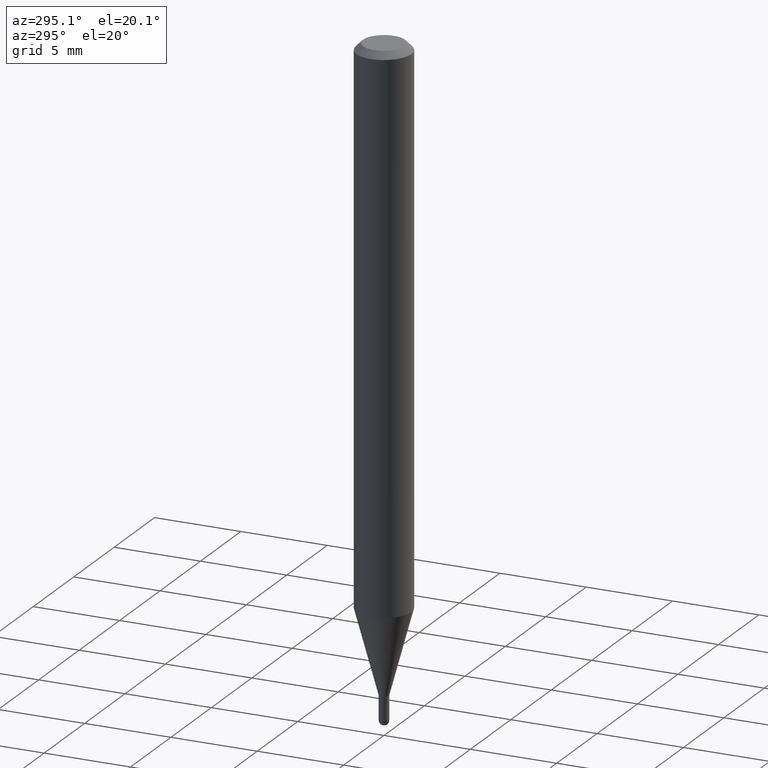
[diagram: clean part render]
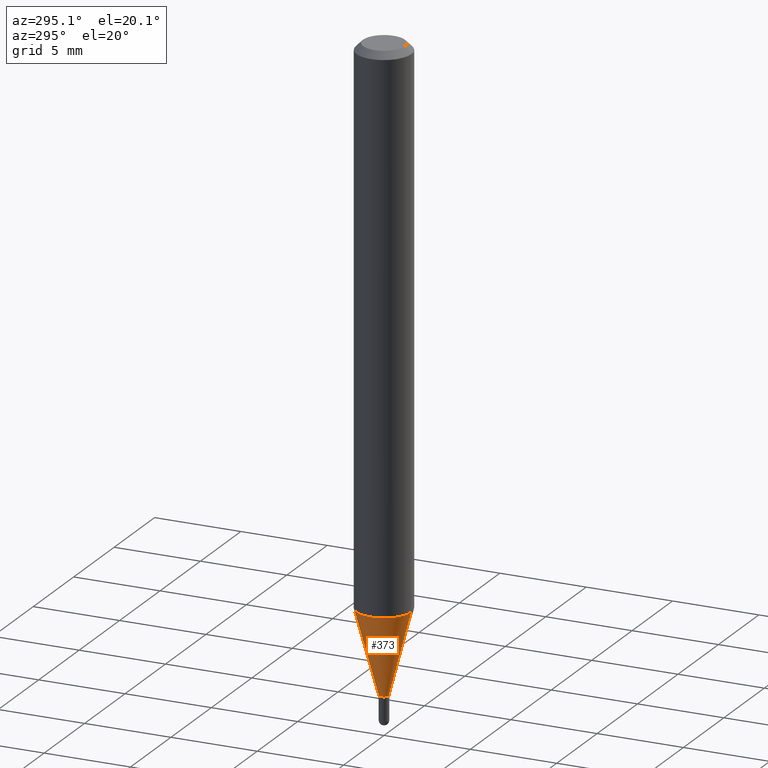
[diagram: same view with one face highlighted and labeled with its STEP entity id]
A machine part, auxiliary view. The second image highlights one B-rep face of the part: STEP entity #373.
In plain terms, the highlighted conical surface has half-angle 15 deg.
Its self-contained STEP definition (entity closure, byte-faithful):
#38 = CARTESIAN_POINT ( 'NONE',  ( 3.506791766465352744E-29, -5.006799278795903380E-15, -1.434000000000000163 ) ) ;
#49 = DIRECTION ( 'NONE',  ( -6.982962677686265922E-15, -1.000000000000000000, 4.370956789862821150E-15 ) ) ;
#70 = CARTESIAN_POINT ( 'NONE',  ( -7.681258945451523121E-17, -0.01100000000000520353, -1.434000000000000163 ) ) ;
#89 = FACE_OUTER_BOUND ( 'NONE', #484, .T. ) ;
#91 = VERTEX_POINT ( 'NONE', #70 ) ;
#125 = DIRECTION ( 'NONE',  ( -6.982962677686265922E-15, -1.000000000000000000, 0.000000000000000000 ) ) ;
#129 = DIRECTION ( 'NONE',  ( -2.445461482890762245E-29, 3.491491826217505762E-15, 1.000000000000000000 ) ) ;
#164 = CARTESIAN_POINT ( 'NONE',  ( 7.815970093364746375E-17, 0.01099999999999519071, -1.434000000000000163 ) ) ;
#165 = VERTEX_POINT ( 'NONE', #414 ) ;
#192 = VECTOR ( 'NONE', #234, 39.37007874015748143 ) ;
#193 = LINE ( 'NONE', #164, #283 ) ;
#194 = CIRCLE ( 'NONE', #411, 0.06250000000000000000 ) ;
#196 = CARTESIAN_POINT ( 'NONE',  ( 4.440892098500927901E-16, 0.06249999999999566319, -1.241799383410210122 ) ) ;
#207 = ORIENTED_EDGE ( 'NONE', *, *, #321, .T. ) ;
#210 = CARTESIAN_POINT ( 'NONE',  ( 3.506791766465352744E-29, -5.006799278795903380E-15, -1.434000000000000163 ) ) ;
#218 = AXIS2_PLACEMENT_3D ( 'NONE', #38, #129, #125 ) ;
#223 = AXIS2_PLACEMENT_3D ( 'NONE', #210, #238, #493 ) ;
#225 = ORIENTED_EDGE ( 'NONE', *, *, #416, .F. ) ;
#228 = LINE ( 'NONE', #317, #192 ) ;
#234 = DIRECTION ( 'NONE',  ( -1.807323732225379838E-15, -0.2588190451025252914, 0.9659258262890670910 ) ) ;
#238 = DIRECTION ( 'NONE',  ( -2.445461482890762245E-29, 3.491491826217505762E-15, 1.000000000000000000 ) ) ;
#254 = EDGE_CURVE ( 'NONE', #348, #91, #497, .T. ) ;
#283 = VECTOR ( 'NONE', #349, 39.37007874015748854 ) ;
#286 = ORIENTED_EDGE ( 'NONE', *, *, #254, .T. ) ;
#315 = EDGE_CURVE ( 'NONE', #348, #355, #193, .T. ) ;
#317 = CARTESIAN_POINT ( 'NONE',  ( -7.681258945451523121E-17, -0.01100000000000520353, -1.434000000000000163 ) ) ;
#321 = EDGE_CURVE ( 'NONE', #91, #165, #228, .T. ) ;
#343 = ORIENTED_EDGE ( 'NONE', *, *, #315, .F. ) ;
#348 = VERTEX_POINT ( 'NONE', #439 ) ;
#349 = DIRECTION ( 'NONE',  ( 1.839019923739650408E-15, 0.2588190451025320082, 0.9659258262890650926 ) ) ;
#355 = VERTEX_POINT ( 'NONE', #196 ) ;
#373 = ADVANCED_FACE ( 'NONE', ( #89 ), #392, .T. ) ;
#392 = CONICAL_SURFACE ( 'NONE', #223, 0.01100000000000019712, 0.2617993877991576235 ) ;
#399 = CARTESIAN_POINT ( 'NONE',  ( 3.036772561607166084E-29, -4.335732396978686706E-15, -1.241799383410209900 ) ) ;
#411 = AXIS2_PLACEMENT_3D ( 'NONE', #399, #491, #49 ) ;
#414 = CARTESIAN_POINT ( 'NONE',  ( -4.364351673553612983E-16, -0.06250000000000434375, -1.241799383410209678 ) ) ;
#416 = EDGE_CURVE ( 'NONE', #355, #165, #194, .T. ) ;
#439 = CARTESIAN_POINT ( 'NONE',  ( 2.611244553918704289E-16, 0.01099999999999519071, -1.434000000000000163 ) ) ;
#484 = EDGE_LOOP ( 'NONE', ( #343, #286, #207, #225 ) ) ;
#491 = DIRECTION ( 'NONE',  ( -2.445461482890762245E-29, 3.491491826217505762E-15, 1.000000000000000000 ) ) ;
#493 = DIRECTION ( 'NONE',  ( -6.982962677686265922E-15, -1.000000000000000000, 0.000000000000000000 ) ) ;
#497 = CIRCLE ( 'NONE', #218, 0.01100000000000019712 ) ;